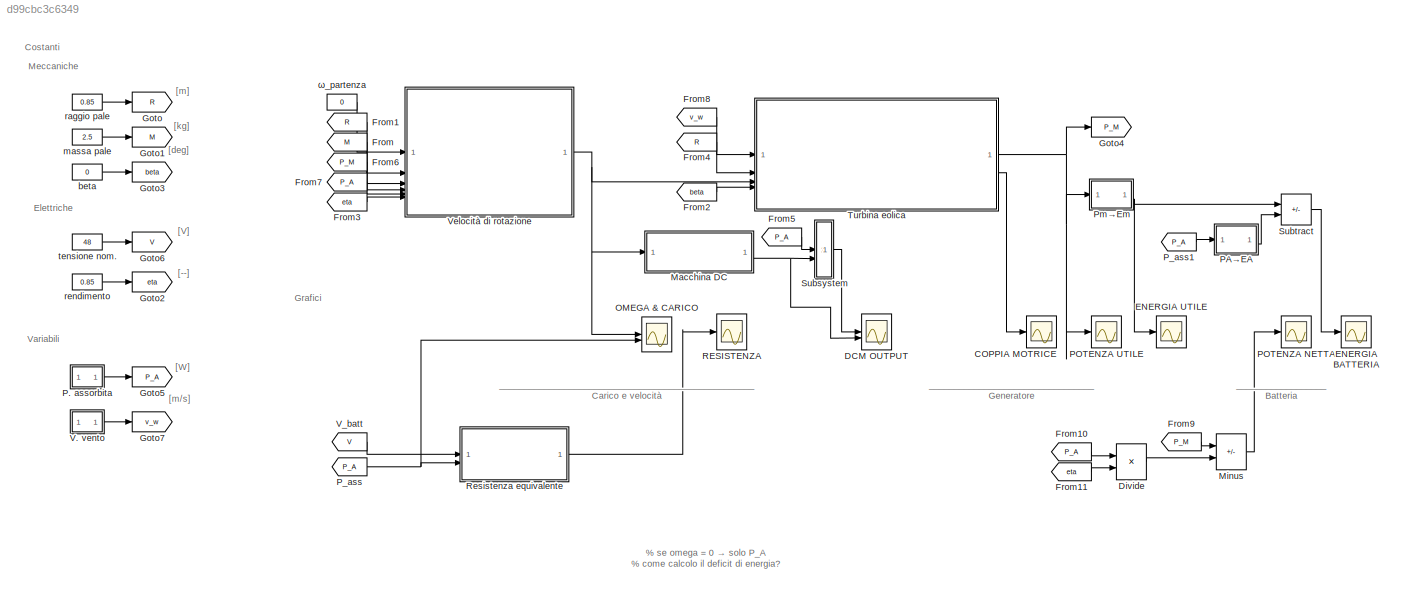
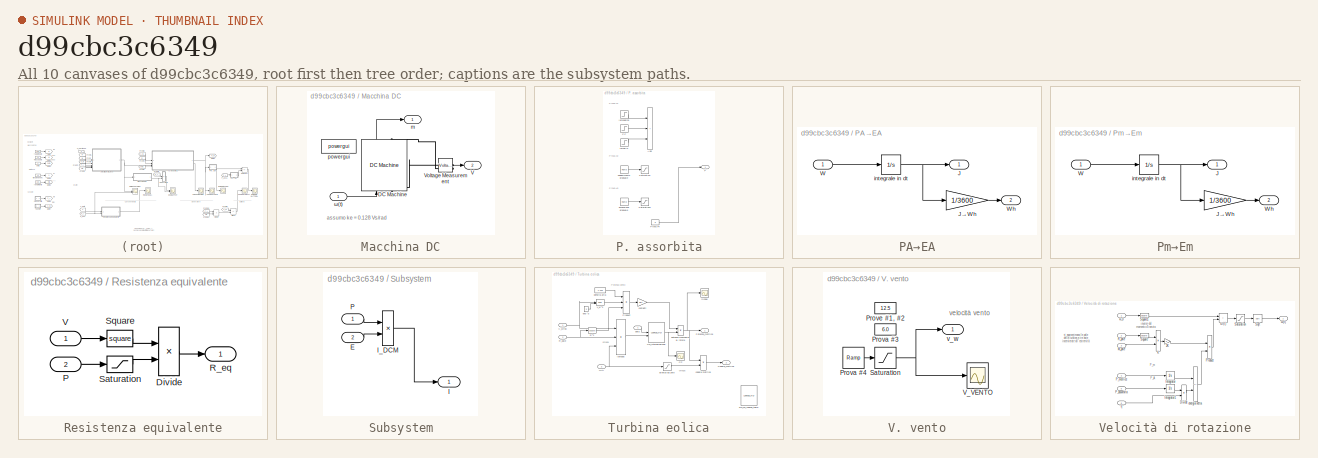
[diagram: thumbnail index - all 10 canvases of the model, root first then tree order]
MODEL slx_d99cbc3c6349
KIND model
CONFIG AbsTol = auto
CONFIG EnableMultiTasking = off
CONFIG FixedStep = auto
CONFIG MaxStep = auto
CONFIG MinStep = auto
CONFIG RelTol = 1e-3
CONFIG SampleTimeConstraint = Unconstrained
CONFIG SolverName = VariableStepAuto
CONFIG StartTime = 0.0
CONFIG StopTime = 1800
BLOCK [Scope] COPPIA MOTRICE
  Floating = off
  NumInputPorts = 1
  ScopeSpecificationString = Simulink.scopes.TimeScopeBlockCfg('CurrentConfiguration', extmgr.ConfigurationSet(extmgr.Configuration('Core','General UI',true,'FigureColor',[1 1 1]),extmgr.Configuration('Core','Source UI',true),extmgr.Configuration('Sources','WiredSimulink',true,'DataLoggingVariableName','ScopeData3'),extmgr.Configuration('Visuals','Time Domain',true,'SerializedDisplays',{struct('MinYLimReal','-1.22036','MaxYLi...<+1816ch>
BLOCK [Scope] DCM OUTPUT
  Floating = off
  NumInputPorts = 2
  ScopeSpecificationString = Simulink.scopes.TimeScopeBlockCfg('CurrentConfiguration', extmgr.ConfigurationSet(extmgr.Configuration('Core','General UI',true,'FigureColor',[1 1 1]),extmgr.Configuration('Core','Source UI',true),extmgr.Configuration('Sources','WiredSimulink',true,'DataLoggingVariableName','ScopeData1'),extmgr.Configuration('Visuals','Time Domain',true,'SerializedDisplays',{struct('MinYLimReal','-1.00000','MaxYLi...<+2617ch>
BLOCK [Product] Divide
  Inputs = */
BLOCK [Scope] ENERGIA BATTERIA
  Floating = off
  NumInputPorts = 1
  ScopeSpecificationString = Simulink.scopes.TimeScopeBlockCfg('CurrentConfiguration', extmgr.ConfigurationSet(extmgr.Configuration('Core','General UI',true,'FigureColor',[1 1 1]),extmgr.Configuration('Core','Source UI',true),extmgr.Configuration('Sources','WiredSimulink',true,'DataLoggingVariableName','ScopeData2'),extmgr.Configuration('Visuals','Time Domain',true,'SerializedDisplays',{struct('MinYLimReal','-6.66941','MaxYLi...<+1824ch>
BLOCK [Scope] ENERGIA UTILE
  Floating = off
  NumInputPorts = 1
  ScopeSpecificationString = Simulink.scopes.TimeScopeBlockCfg('CurrentConfiguration', extmgr.ConfigurationSet(extmgr.Configuration('Core','General UI',true,'FigureColor',[1 1 1]),extmgr.Configuration('Core','Source UI',true),extmgr.Configuration('Sources','WiredSimulink',true,'DataLoggingVariableName','ScopeData4'),extmgr.Configuration('Visuals','Time Domain',true,'SerializedDisplays',{struct('MinYLimReal','-6.66941','MaxYLi...<+1823ch>
BLOCK [From] From
  GotoTag = M
BLOCK [From] From1
  GotoTag = R
BLOCK [From] From10
  GotoTag = P_A
BLOCK [From] From11
  GotoTag = eta
BLOCK [From] From2
  GotoTag = beta
BLOCK [From] From3
  GotoTag = eta
BLOCK [From] From4
  GotoTag = R
BLOCK [From] From5
  GotoTag = P_A
BLOCK [From] From6
  GotoTag = P_M
BLOCK [From] From7
  GotoTag = P_A
BLOCK [From] From8
  GotoTag = v_w
BLOCK [From] From9
  GotoTag = P_M
BLOCK [Goto] Goto
  GotoTag = R
BLOCK [Goto] Goto1
  GotoTag = M
BLOCK [Goto] Goto2
  GotoTag = eta
BLOCK [Goto] Goto3
  GotoTag = beta
BLOCK [Goto] Goto4
  GotoTag = P_M
BLOCK [Goto] Goto5
  GotoTag = P_A
BLOCK [Goto] Goto6
  GotoTag = V
BLOCK [Goto] Goto7
  GotoTag = v_w
BLOCK [SubSystem] Macchina DC
BLOCK [Reference] Macchina DC/DC Machine  REF=spsDCMachineLib/DC Machine
  LibrarySourceBlock = sps_lib/Electrical Machines/DC Machine
  NameLocation = left
  SourceBlock = spsDCMachineLib/DC Machine
  SourceType = DC machine
BLOCK [Outport] Macchina DC/V
  Port = 2
  Unit = V
BLOCK [Reference] Macchina DC/Voltage Measurement  REF=spsVoltageMeasurementLib/Voltage Measurement
  LibrarySourceBlock = sps_lib/Sensors and Measurements/Voltage Measurement
  SourceBlock = spsVoltageMeasurementLib/Voltage Measurement
  SourceType = Voltage Measurement
  UserDataPersistent = on
BLOCK [Outport] Macchina DC/m
BLOCK [Reference] Macchina DC/powergui  REF=sps_lib/powergui
  LibrarySourceBlock = sps_lib/powergui
  Priority = 1
  SourceBlock = sps_lib/powergui
  SourceType = PSB option menu block
BLOCK [Inport] Macchina DC/ω(t)
BLOCK [Sum] Minus
  IconShape = rectangular
  Inputs = +-
BLOCK [Scope] OMEGA & CARICO
  Floating = off
  NumInputPorts = 2
  ScopeSpecificationString = Simulink.scopes.TimeScopeBlockCfg('CurrentConfiguration', extmgr.ConfigurationSet(extmgr.Configuration('Core','General UI',true,'FigureColor',[1 1 1]),extmgr.Configuration('Core','Source UI',true),extmgr.Configuration('Sources','WiredSimulink',true,'DataLoggingVariableName','ScopeData1'),extmgr.Configuration('Visuals','Time Domain',true,'SerializedDisplays',{struct('MinYLimReal','-57.64693','MaxYL...<+2652ch>
BLOCK [SubSystem] P. assorbita
BLOCK [Sum] P. assorbita/Add
  IconShape = rectangular
  Inputs = +++
BLOCK [Outport] P. assorbita/P
BLOCK [Step] P. assorbita/PC
  After = 90
  SampleTime = 0
  Time = 1200
BLOCK [Constant] P. assorbita/Prova #4
  NameLocation = left
  Value = 0
BLOCK [Saturate] P. assorbita/Saturation
  LowerLimit = 0
  UpperLimit = 1000
BLOCK [Saturate] P. assorbita/Saturation1
  LowerLimit = 0
  UpperLimit = 200
BLOCK [Reference] P. assorbita/accensione graduale  REF=simulink/Sources/Ramp
  SourceBlock = simulink/Sources/Ramp
  SourceType = Ramp
BLOCK [Step] P. assorbita/fornello
  After = 900
  SampleTime = 0
  Time = 1500
BLOCK [Step] P. assorbita/lampadina
  After = 10
  SampleTime = 0
  Time = 900
BLOCK [Reference] P. assorbita/spegnimento graduale  REF=simulink/Sources/Ramp
  SourceBlock = simulink/Sources/Ramp
  SourceType = Ramp
BLOCK [SubSystem] PA→EA
BLOCK [Outport] PA→EA/J
  Unit = J
BLOCK [Gain] PA→EA/J→Wh
  Gain = 1/3600
BLOCK [Inport] PA→EA/W
BLOCK [Outport] PA→EA/Wh
  Port = 2
  Unit = W*h
BLOCK [Integrator] PA→EA/integrale in dt
BLOCK [Scope] POTENZA NETTA
  Floating = off
  NumInputPorts = 1
  ScopeSpecificationString = Simulink.scopes.TimeScopeBlockCfg('CurrentConfiguration', extmgr.ConfigurationSet(extmgr.Configuration('Core','General UI',true,'FigureColor',[1 1 1]),extmgr.Configuration('Core','Source UI',true),extmgr.Configuration('Sources','WiredSimulink',true,'DataLoggingVariableName','ScopeData1'),extmgr.Configuration('Visuals','Time Domain',true,'SerializedDisplays',{struct('MinYLimReal','-251.2003','MaxYL...<+1878ch>
BLOCK [Scope] POTENZA UTILE
  Floating = off
  NumInputPorts = 1
  ScopeSpecificationString = Simulink.scopes.TimeScopeBlockCfg('CurrentConfiguration', extmgr.ConfigurationSet(extmgr.Configuration('Core','General UI',true,'FigureColor',[1 1 1]),extmgr.Configuration('Core','Source UI',true),extmgr.Configuration('Sources','WiredSimulink',true,'DataLoggingVariableName','ScopeData2'),extmgr.Configuration('Visuals','Time Domain',true,'SerializedDisplays',{struct('MinYLimReal','-251.2003','MaxYL...<+1866ch>
BLOCK [From] P_ass
  GotoTag = P_A
  NameLocation = left
BLOCK [From] P_ass1
  GotoTag = P_A
  NameLocation = left
BLOCK [SubSystem] Pm→Em
BLOCK [Outport] Pm→Em/J
  Unit = J
BLOCK [Gain] Pm→Em/J→Wh
  Gain = 1/3600
BLOCK [Inport] Pm→Em/W
BLOCK [Outport] Pm→Em/Wh
  Port = 2
  Unit = W*h
BLOCK [Integrator] Pm→Em/integrale in dt
BLOCK [Scope] RESISTENZA
  Floating = off
  NumInputPorts = 1
  ScopeSpecificationString = Simulink.scopes.TimeScopeBlockCfg('CurrentConfiguration', extmgr.ConfigurationSet(extmgr.Configuration('Core','General UI',true,'FigureColor',[1 1 1]),extmgr.Configuration('Core','Source UI',true),extmgr.Configuration('Sources','WiredSimulink',true,'DataLoggingVariableName','ScopeData1'),extmgr.Configuration('Visuals','Time Domain',true,'SerializedDisplays',{struct('MinYLimReal','-100','MaxYLimRea...<+1880ch>
BLOCK [SubSystem] Resistenza equivalente
BLOCK [Product] Resistenza equivalente/Divide
  Inputs = */
BLOCK [Inport] Resistenza equivalente/P
  NameLocation = left
  Port = 2
BLOCK [Outport] Resistenza equivalente/R_eq
  NameLocation = right
  Unit = Ω
BLOCK [Saturate] Resistenza equivalente/Saturation
  LowerLimit = 10e-1
  UpperLimit = 10e4
BLOCK [Math] Resistenza equivalente/Square
  Operator = square
BLOCK [Inport] Resistenza equivalente/V
  NameLocation = left
  Unit = V
BLOCK [SubSystem] Subsystem
BLOCK [Inport] Subsystem/E
  NameLocation = left
  Port = 2
  Unit = V
BLOCK [Outport] Subsystem/I
  Unit = A
BLOCK [Product] Subsystem/I_DCM
  Inputs = */
BLOCK [Inport] Subsystem/P
  NameLocation = left
  Unit = W
BLOCK [Sum] Subtract
  IconShape = rectangular
  Inputs = +-
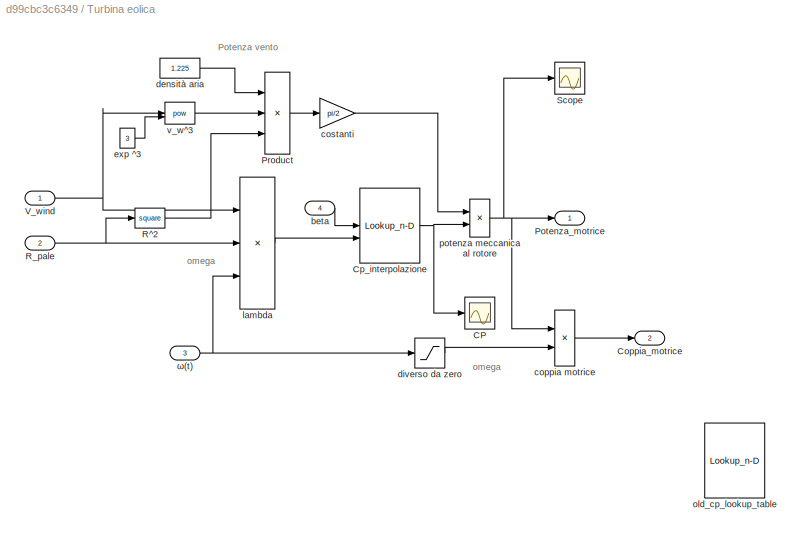
BLOCK [SubSystem] Turbina eolica
BLOCK [Scope] Turbina eolica/CP
  Floating = off
  NumInputPorts = 1
  ScopeSpecificationString = Simulink.scopes.TimeScopeBlockCfg('CurrentConfiguration', extmgr.ConfigurationSet(extmgr.Configuration('Core','General UI',true,'FigureColor',[1 1 1]),extmgr.Configuration('Core','Source UI',true),extmgr.Configuration('Sources','WiredSimulink',true,'DataLoggingVariableName','ScopeData3'),extmgr.Configuration('Visuals','Time Domain',true,'SerializedDisplays',{struct('MinYLimReal','-0.06153','MaxYLi...<+1858ch>
BLOCK [Outport] Turbina eolica/Coppia_motrice
  Port = 2
  Unit = N*m
BLOCK [Lookup_n-D] Turbina eolica/Cp_interpolazione
  BreakpointsForDimension1 = pitch
  BreakpointsForDimension2 = TSR
  InputPortMap = u0,u1
  InternalRulePriority = Speed
  InterpMethod = Cubic spline
  RndMeth = Simplest
  Table = cp
BLOCK [Outport] Turbina eolica/Potenza_motrice
  Unit = W
BLOCK [Product] Turbina eolica/Product
  Inputs = ***
BLOCK [Math] Turbina eolica/R^2
  Operator = square
BLOCK [Inport] Turbina eolica/R_pale
  Port = 2
  Unit = m
BLOCK [Scope] Turbina eolica/Scope
  Floating = off
  NumInputPorts = 1
  ScopeSpecificationString = Simulink.scopes.TimeScopeBlockCfg('CurrentConfiguration', extmgr.ConfigurationSet(extmgr.Configuration('Core','General UI',true),extmgr.Configuration('Core','Source UI',true),extmgr.Configuration('Sources','WiredSimulink',true,'DataLoggingVariableName','ScopeData5'),extmgr.Configuration('Visuals','Time Domain',true,'SerializedDisplays',{struct('MinYLimReal','-251.2003','MaxYLimReal','2260.80274','...<+1854ch>
BLOCK [Inport] Turbina eolica/V_wind
  Unit = m/s
BLOCK [Inport] Turbina eolica/beta
  Port = 4
  Unit = deg
BLOCK [Product] Turbina eolica/coppia motrice
  Inputs = */
BLOCK [Gain] Turbina eolica/costanti
  Gain = pi/2
BLOCK [Constant] Turbina eolica/densità aria
  Value = 1.225
BLOCK [Saturate] Turbina eolica/diverso da zero
  LowerLimit = 0.1
  UpperLimit = 10e3
BLOCK [Constant] Turbina eolica/exp ^3
  Value = 3
BLOCK [Product] Turbina eolica/lambda
  Inputs = /**
BLOCK [Lookup_n-D] Turbina eolica/old_cp_lookup_table
  BreakpointsForDimension1 = [0, 3, 5, 10, 20, 90]
  BreakpointsForDimension2 = [0, 2, 4, 6, 8, 10, 12, 14, 15]
  Commented = on
  InputPortMap = u0,u1
  InternalRulePriority = Speed
  InterpMethod = Linear Lagrange
  RndMeth = Simplest
  Table = [0.0010, 0.0161, 0.1446, 0.3865, 0.5009, 0.4404, 0.2545, 0.0002, -0.1384; 0.0016, 0.0173, 0.1079, 0.2676, 0.3779, 0.4111, 0.3838, 0.3176, 0.2753; 0.0027, 0.0197, 0.1151, 0.2606, 0.3469, 0.3558, 0.3069, 0.2222, 0.1718; 0.0054, 0.0283, 0.1315, 0.2364, 0.2589, 0.2022, 0.0929, -0.0455, -0.1204; 0.0109, 0.0536, 0.1320, 0.1256, 0.0120, -0.1752, -0.4017, -0.6435, -0.7655; -0.01 * ones(1, 9)]
BLOCK [Product] Turbina eolica/potenza meccanica al rotore
BLOCK [Math] Turbina eolica/v_w^3
  Operator = pow
BLOCK [Inport] Turbina eolica/ω(t)
  Port = 3
BLOCK [SubSystem] V. vento
BLOCK [Constant] V. vento/Prova #3
  NameLocation = left
  Value = 6.0
BLOCK [Reference] V. vento/Prova #4  REF=simulink/Sources/Ramp
  NameLocation = left
  SourceBlock = simulink/Sources/Ramp
  SourceType = Ramp
BLOCK [Constant] V. vento/Prove #1, #2
  NameLocation = left
  Value = 12.5
BLOCK [Saturate] V. vento/Saturation
  LowerLimit = 10e-2
  UpperLimit = 20
BLOCK [Scope] V. vento/V_VENTO
  Floating = off
  NumInputPorts = 1
  ScopeSpecificationString = Simulink.scopes.TimeScopeBlockCfg('CurrentConfiguration', extmgr.ConfigurationSet(extmgr.Configuration('Core','General UI',true,'FigureColor',[1 1 1]),extmgr.Configuration('Core','Source UI',true),extmgr.Configuration('Sources','WiredSimulink',true,'DataLoggingVariableName','ScopeData2'),extmgr.Configuration('Visuals','Time Domain',true,'SerializedDisplays',{struct('MinYLimReal','-0.25','MaxYLimRe...<+1867ch>
BLOCK [Outport] V. vento/v_w
BLOCK [From] V_batt
  GotoTag = V
  NameLocation = left
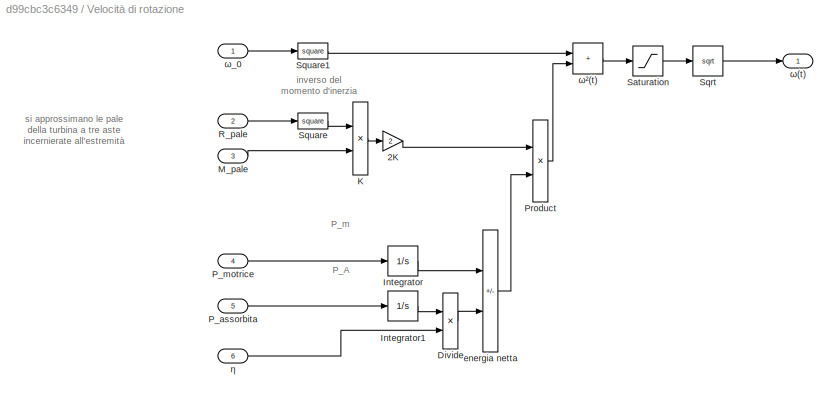
BLOCK [SubSystem] Velocità di rotazione
BLOCK [Gain] Velocità di rotazione/2K
  Gain = 2
BLOCK [Product] Velocità di rotazione/Divide
  Inputs = */
BLOCK [Integrator] Velocità di rotazione/Integrator
BLOCK [Integrator] Velocità di rotazione/Integrator1
BLOCK [Product] Velocità di rotazione/K
  Inputs = //
BLOCK [Inport] Velocità di rotazione/M_pale
  Port = 3
  Unit = kg
BLOCK [Inport] Velocità di rotazione/P_assorbita
  Port = 5
  Unit = W
BLOCK [Inport] Velocità di rotazione/P_motrice
  Port = 4
  Unit = W
BLOCK [Product] Velocità di rotazione/Product
BLOCK [Inport] Velocità di rotazione/R_pale
  Port = 2
  Unit = m
BLOCK [Saturate] Velocità di rotazione/Saturation
  LowerLimit = 0
  UpperLimit = 10e6
BLOCK [Sqrt] Velocità di rotazione/Sqrt
BLOCK [Math] Velocità di rotazione/Square
  Operator = square
BLOCK [Math] Velocità di rotazione/Square1
  Operator = square
BLOCK [Sum] Velocità di rotazione/energia netta
  IconShape = rectangular
  Inputs = +-
BLOCK [Inport] Velocità di rotazione/η
  Port = 6
  Unit = 1
BLOCK [Outport] Velocità di rotazione/ω(t)
  Unit = rad/s
BLOCK [Inport] Velocità di rotazione/ω_0
  Unit = rad/s
BLOCK [Sum] Velocità di rotazione/ω²(t)
  IconShape = rectangular
BLOCK [Constant] beta
  Value = 0
BLOCK [Constant] massa pale
  Value = 2.5
BLOCK [Constant] raggio pale
  Value = 0.85
BLOCK [Constant] rendimento
  Value = 0.85
BLOCK [Constant] tensione nom.
  Value = 48
BLOCK [Constant] ω_partenza
  NameLocation = left
  Value = 0
ANNOTATION (root): % se omega = 0 → solo P_A % come calcolo il deficit di energia?
ANNOTATION (root): [V]
ANNOTATION (root): [W]
ANNOTATION (root): [deg]
ANNOTATION (root): [m/s]
ANNOTATION (root): [m]
ANNOTATION (root): [--]
ANNOTATION (root): [kg]
ANNOTATION (root): __________________ Batteria
ANNOTATION (root): _________________________________ Generatore
ANNOTATION (root): ___________________________________________________ Carico e velocità
ANNOTATION (root): Costanti
ANNOTATION (root): Elettriche
ANNOTATION (root): Grafici
ANNOTATION (root): Meccaniche
ANNOTATION (root): Variabili
ANNOTATION Macchina DC: assumo ke = 0.128 Vs/rad
ANNOTATION P. assorbita: Prova #1
ANNOTATION P. assorbita: Prova #2
ANNOTATION P. assorbita: Prova #3
ANNOTATION Turbina eolica: Potenza vento
ANNOTATION Turbina eolica: omega
ANNOTATION V. vento: velocità vento
ANNOTATION Velocità di rotazione: si approssimano le pale della turbina a tre aste incernierate all'estremità
ANNOTATION Velocità di rotazione: inverso del momento d'inerzia
ANNOTATION Velocità di rotazione: P_A
ANNOTATION Velocità di rotazione: P_m
LINE Divide:1 -> Minus:2
LINE From10:1 -> Divide:1
LINE From11:1 -> Divide:2
LINE From1:1 -> Velocità di rotazione:2
LINE From2:1 -> Turbina eolica:4
LINE From3:1 -> Velocità di rotazione:6
LINE From4:1 -> Turbina eolica:2
LINE From5:1 -> Subsystem:1
LINE From6:1 -> Velocità di rotazione:4
LINE From7:1 -> Velocità di rotazione:5
LINE From8:1 -> Turbina eolica:1
LINE From9:1 -> Minus:1
LINE From:1 -> Velocità di rotazione:3
LINE Macchina DC/DC Machine:1 -> Macchina DC/m:1
LINE Macchina DC/Voltage Measurement:1 -> Macchina DC/V:1
LINE Macchina DC/ω(t):1 -> Macchina DC/DC Machine:1
NET Macchina DC:2 -> DCM OUTPUT:2, Subsystem:2
LINE Minus:1 -> POTENZA NETTA:1
LINE P. assorbita/PC:1 -> P. assorbita/Add:2
LINE P. assorbita/Prova #4:1 -> P. assorbita/P:1
LINE P. assorbita/accensione graduale:1 -> P. assorbita/Saturation1:1
LINE P. assorbita/fornello:1 -> P. assorbita/Add:3
LINE P. assorbita/lampadina:1 -> P. assorbita/Add:1
LINE P. assorbita/spegnimento graduale:1 -> P. assorbita/Saturation:1
LINE P. assorbita:1 -> Goto5:1
LINE PA→EA/J→Wh:1 -> PA→EA/Wh:1
LINE PA→EA/W:1 -> PA→EA/integrale in dt:1
NET PA→EA/integrale in dt:1 -> PA→EA/J:1, PA→EA/J→Wh:1
LINE PA→EA:2 -> Subtract:2
LINE P_ass1:1 -> PA→EA:1
NET P_ass:1 -> OMEGA & CARICO:2, Resistenza equivalente:2
LINE Pm→Em/J→Wh:1 -> Pm→Em/Wh:1
LINE Pm→Em/W:1 -> Pm→Em/integrale in dt:1
NET Pm→Em/integrale in dt:1 -> Pm→Em/J:1, Pm→Em/J→Wh:1
NET Pm→Em:2 -> ENERGIA UTILE:1, Subtract:1
LINE Resistenza equivalente/Divide:1 -> Resistenza equivalente/R_eq:1
LINE Resistenza equivalente/P:1 -> Resistenza equivalente/Saturation:1
LINE Resistenza equivalente/Saturation:1 -> Resistenza equivalente/Divide:2
LINE Resistenza equivalente/Square:1 -> Resistenza equivalente/Divide:1
LINE Resistenza equivalente/V:1 -> Resistenza equivalente/Square:1
LINE Resistenza equivalente:1 -> RESISTENZA:1
LINE Subsystem/E:1 -> Subsystem/I_DCM:2
LINE Subsystem/I_DCM:1 -> Subsystem/I:1
LINE Subsystem/P:1 -> Subsystem/I_DCM:1
LINE Subsystem:1 -> DCM OUTPUT:1
LINE Subtract:1 -> ENERGIA BATTERIA:1
NET Turbina eolica/Cp_interpolazione:1 -> Turbina eolica/CP:1, Turbina eolica/potenza meccanica al rotore:2
LINE Turbina eolica/Product:1 -> Turbina eolica/costanti:1
LINE Turbina eolica/R^2:1 -> Turbina eolica/Product:3
NET Turbina eolica/R_pale:1 -> Turbina eolica/R^2:1, Turbina eolica/lambda:2
NET Turbina eolica/V_wind:1 -> Turbina eolica/lambda:1, Turbina eolica/v_w^3:1
LINE Turbina eolica/beta:1 -> Turbina eolica/Cp_interpolazione:1
LINE Turbina eolica/coppia motrice:1 -> Turbina eolica/Coppia_motrice:1
LINE Turbina eolica/costanti:1 -> Turbina eolica/potenza meccanica al rotore:1
LINE Turbina eolica/densità aria:1 -> Turbina eolica/Product:1
LINE Turbina eolica/diverso da zero:1 -> Turbina eolica/coppia motrice:2
LINE Turbina eolica/exp ^3:1 -> Turbina eolica/v_w^3:2
LINE Turbina eolica/lambda:1 -> Turbina eolica/Cp_interpolazione:2
NET Turbina eolica/potenza meccanica al rotore:1 -> Turbina eolica/Potenza_motrice:1, Turbina eolica/Scope:1, Turbina eolica/coppia motrice:1
LINE Turbina eolica/v_w^3:1 -> Turbina eolica/Product:2
NET Turbina eolica/ω(t):1 -> Turbina eolica/diverso da zero:1, Turbina eolica/lambda:3
NET Turbina eolica:1 -> Goto4:1, POTENZA UTILE:1, Pm→Em:1
LINE Turbina eolica:2 -> COPPIA MOTRICE:1
LINE V. vento/Prova #4:1 -> V. vento/Saturation:1
NET V. vento/Saturation:1 -> V. vento/V_VENTO:1, V. vento/v_w:1
LINE V. vento:1 -> Goto7:1
LINE V_batt:1 -> Resistenza equivalente:1
LINE Velocità di rotazione/2K:1 -> Velocità di rotazione/Product:1
LINE Velocità di rotazione/Divide:1 -> Velocità di rotazione/energia netta:2
LINE Velocità di rotazione/Integrator1:1 -> Velocità di rotazione/Divide:1
LINE Velocità di rotazione/Integrator:1 -> Velocità di rotazione/energia netta:1
LINE Velocità di rotazione/K:1 -> Velocità di rotazione/2K:1
LINE Velocità di rotazione/M_pale:1 -> Velocità di rotazione/K:2
LINE Velocità di rotazione/P_assorbita:1 -> Velocità di rotazione/Integrator1:1
LINE Velocità di rotazione/P_motrice:1 -> Velocità di rotazione/Integrator:1
LINE Velocità di rotazione/Product:1 -> Velocità di rotazione/ω²(t):2
LINE Velocità di rotazione/R_pale:1 -> Velocità di rotazione/Square:1
LINE Velocità di rotazione/Saturation:1 -> Velocità di rotazione/Sqrt:1
LINE Velocità di rotazione/Sqrt:1 -> Velocità di rotazione/ω(t):1
LINE Velocità di rotazione/Square1:1 -> Velocità di rotazione/ω²(t):1
LINE Velocità di rotazione/Square:1 -> Velocità di rotazione/K:1
LINE Velocità di rotazione/energia netta:1 -> Velocità di rotazione/Product:2
LINE Velocità di rotazione/η:1 -> Velocità di rotazione/Divide:2
LINE Velocità di rotazione/ω_0:1 -> Velocità di rotazione/Square1:1
LINE Velocità di rotazione/ω²(t):1 -> Velocità di rotazione/Saturation:1
NET Velocità di rotazione:1 -> Macchina DC:1, OMEGA & CARICO:1, Turbina eolica:3
LINE beta:1 -> Goto3:1
LINE massa pale:1 -> Goto1:1
LINE raggio pale:1 -> Goto:1
LINE rendimento:1 -> Goto2:1
LINE tensione nom.:1 -> Goto6:1
LINE ω_partenza:1 -> Velocità di rotazione:1
PLINE Macchina DC/DC Machine:LConn1 -- Macchina DC/Voltage Measurement:LConn1
PLINE Macchina DC/DC Machine:RConn1 -- Macchina DC/Voltage Measurement:LConn2
note: NET lines group one-source signal fan-out (src -> all destinations, sorted); 1:1 wires keep LINE
